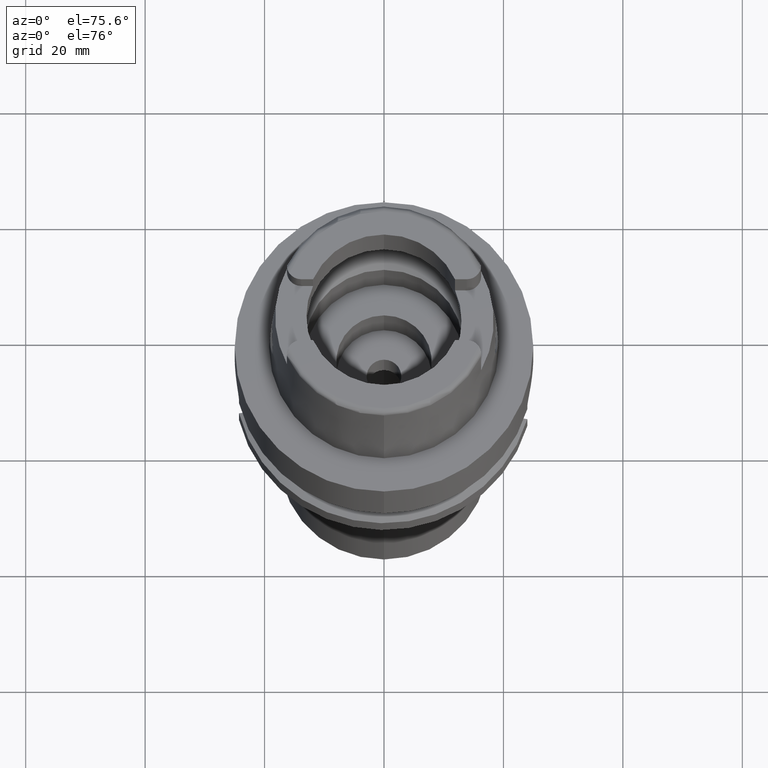
[diagram: clean part render]
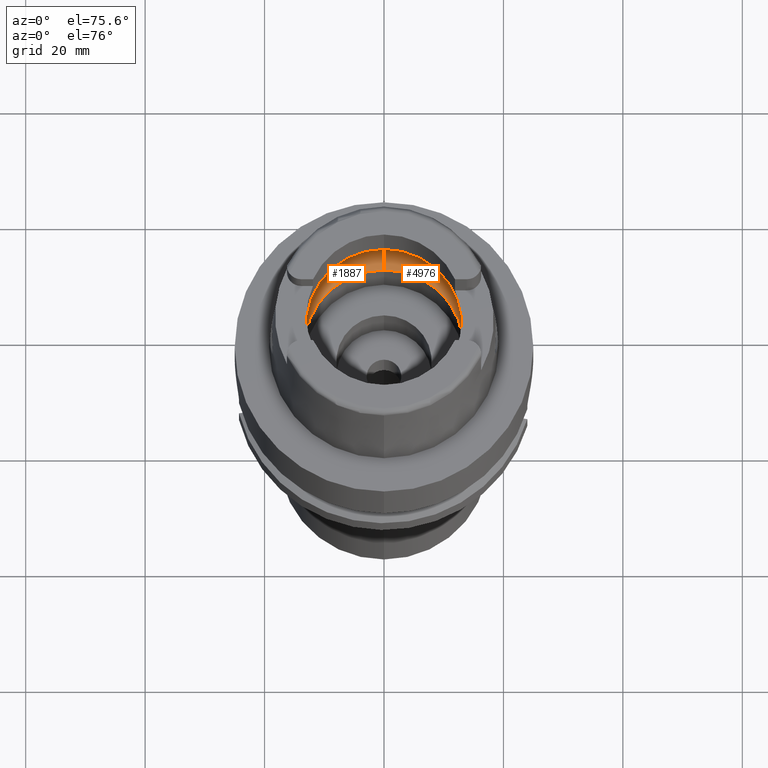
[diagram: same view with one multi-face feature highlighted, each face labeled with its STEP entity id]
A machine part, auxiliary view. The highlighted faces form ONE feature: a constant-radius fillet chain: 2 tangent blend faces with common blend radius 6 mm. The faces share edges in the B-rep.
Their STEP definitions:
[1] entity #1887 (Torus):
#8 = EDGE_CURVE ( 'NONE', #2583, #4451, #1337, .T. ) ;
#307 = CARTESIAN_POINT ( 'NONE',  ( 0.0000000000000000000, -13.29999999999999893, 0.04999999999997999794 ) ) ;
#491 = CARTESIAN_POINT ( 'NONE',  ( 0.0000000000000000000, 0.0000000000000000000, 0.04999999999997999794 ) ) ;
#748 = VERTEX_POINT ( 'NONE', #1587 ) ;
#751 = DIRECTION ( 'NONE',  ( 1.000000000000000000, 0.0000000000000000000, 0.0000000000000000000 ) ) ;
#788 = AXIS2_PLACEMENT_3D ( 'NONE', #3961, #751, #2443 ) ;
#846 = CARTESIAN_POINT ( 'NONE',  ( -15.90436354886000103, -1.746774199932999982, 5.060987926546999915 ) ) ;
#891 = VERTEX_POINT ( 'NONE', #3239 ) ;
#951 = DIRECTION ( 'NONE',  ( 0.0000000000000000000, 0.0000000000000000000, -1.000000000000000000 ) ) ;
#992 = EDGE_CURVE ( 'NONE', #748, #1645, #2294, .T. ) ;
#1009 = CARTESIAN_POINT ( 'NONE',  ( -15.92748130313666799, 1.536287252947671211, 4.910241166242705013 ) ) ;
#1070 = DIRECTION ( 'NONE',  ( -1.000000000000000000, 0.0000000000000000000, 0.0000000000000000000 ) ) ;
#1156 = CARTESIAN_POINT ( 'NONE',  ( -15.97371681168999835, 0.0000000000000000000, 4.500000000000000000 ) ) ;
#1162 = DIRECTION ( 'NONE',  ( 0.0000000000000000000, 0.0000000000000000000, -1.000000000000000000 ) ) ;
#1187 = DIRECTION ( 'NONE',  ( -0.9940227218040297297, 0.1091733874958031730, 0.0000000000000000000 ) ) ;
#1337 = B_SPLINE_CURVE_WITH_KNOTS ( 'NONE', 3,
 ( #1395, #3659, #1550, #2718, #3234, #1156 ),
 .UNSPECIFIED., .F., .F.,
 ( 4, 2, 4 ),
 ( 0.0000000000000000000, 0.5000000000000000000, 1.000000000000000000 ),
 .UNSPECIFIED. ) ;
#1395 = CARTESIAN_POINT ( 'NONE',  ( -15.90436354886000103, -1.746774199932999982, 5.060987926546999915 ) ) ;
#1468 = CARTESIAN_POINT ( 'NONE',  ( -15.96793737312083827, 0.6977532815320883763, 4.565769782569849333 ) ) ;
#1550 = CARTESIAN_POINT ( 'NONE',  ( -15.94481961884416954, -1.284363903373151983, 4.771085202048062079 ) ) ;
#1587 = CARTESIAN_POINT ( 'NONE',  ( 0.0000000000000000000, 13.29999999999999893, 0.04999999999997999794 ) ) ;
#1645 = VERTEX_POINT ( 'NONE', #307 ) ;
#1702 = EDGE_CURVE ( 'NONE', #891, #1824, #3350, .T. ) ;
#1794 = ORIENTED_EDGE ( 'NONE', *, *, #4633, .F. ) ;
#1824 = VERTEX_POINT ( 'NONE', #5067 ) ;
#1887 = ADVANCED_FACE ( 'NONE', ( #3353 ), #3895, .F. ) ;
#2294 = CIRCLE ( 'NONE', #3085, 13.29999999999999893 ) ;
#2329 = EDGE_LOOP ( 'NONE', ( #3243, #1794, #3092, #4161, #3415, #5032, #4811 ) ) ;
#2443 = DIRECTION ( 'NONE',  ( 0.0000000000000000000, 0.5500000000000007105, -0.8351646544245028281 ) ) ;
#2502 = CARTESIAN_POINT ( 'NONE',  ( 0.0000000000000000000, -16.00000000000000000, 5.060987926546999915 ) ) ;
#2583 = VERTEX_POINT ( 'NONE', #846 ) ;
#2621 = CARTESIAN_POINT ( 'NONE',  ( -15.97371681168999835, 0.3626031211342209404, 4.500000000000000000 ) ) ;
#2718 = CARTESIAN_POINT ( 'NONE',  ( -15.96793737312083472, -0.6977532815764048157, 4.565769782580386682 ) ) ;
#2723 = CIRCLE ( 'NONE', #3343, 16.00000000000000000 ) ;
#2846 = EDGE_CURVE ( 'NONE', #3249, #2583, #2723, .T. ) ;
#2909 = DIRECTION ( 'NONE',  ( 0.0000000000000000000, 1.000000000000000000, 0.0000000000000000000 ) ) ;
#3085 = AXIS2_PLACEMENT_3D ( 'NONE', #491, #3588, #4829 ) ;
#3092 = ORIENTED_EDGE ( 'NONE', *, *, #992, .F. ) ;
#3098 = CARTESIAN_POINT ( 'NONE',  ( -15.90436354886000103, 1.746774199932999982, 5.060987926546999915 ) ) ;
#3234 = CARTESIAN_POINT ( 'NONE',  ( -15.97371681168999835, -0.3626031211644242247, 4.499999999999999112 ) ) ;
#3239 = CARTESIAN_POINT ( 'NONE',  ( -15.90436354886000103, 1.746774199932999982, 5.060987926546999915 ) ) ;
#3243 = ORIENTED_EDGE ( 'NONE', *, *, #2846, .F. ) ;
#3249 = VERTEX_POINT ( 'NONE', #2502 ) ;
#3296 = CARTESIAN_POINT ( 'NONE',  ( 0.0000000000000000000, 0.0000000000000000000, 5.060987926546999915 ) ) ;
#3343 = AXIS2_PLACEMENT_3D ( 'NONE', #4773, #951, #3937 ) ;
#3350 = CIRCLE ( 'NONE', #4885, 16.00000000000000355 ) ;
#3353 = FACE_OUTER_BOUND ( 'NONE', #2329, .T. ) ;
#3415 = ORIENTED_EDGE ( 'NONE', *, *, #1702, .F. ) ;
#3544 = CARTESIAN_POINT ( 'NONE',  ( -15.97371681168999835, 0.0000000000000000000, 4.500000000000000000 ) ) ;
#3588 = DIRECTION ( 'NONE',  ( 0.0000000000000000000, 0.0000000000000000000, 1.000000000000000000 ) ) ;
#3659 = CARTESIAN_POINT ( 'NONE',  ( -15.92748130313666799, -1.536287252972227124, 4.910241166260291834 ) ) ;
#3895 = TOROIDAL_SURFACE ( 'NONE', #4791, 10.00000000000000000, 6.000000000000000000 ) ;
#3910 = AXIS2_PLACEMENT_3D ( 'NONE', #5380, #1070, #4044 ) ;
#3937 = DIRECTION ( 'NONE',  ( 0.0000000000000000000, -1.000000000000000000, 0.0000000000000000000 ) ) ;
#3961 = CARTESIAN_POINT ( 'NONE',  ( 0.0000000000000000000, 10.00000000000000000, 5.060987926546999915 ) ) ;
#4044 = DIRECTION ( 'NONE',  ( 0.0000000000000000000, -0.5500000000000007105, -0.8351646544245028281 ) ) ;
#4161 = ORIENTED_EDGE ( 'NONE', *, *, #4494, .T. ) ;
#4228 = CARTESIAN_POINT ( 'NONE',  ( 0.0000000000000000000, 0.0000000000000000000, 5.060987926546999915 ) ) ;
#4389 = CARTESIAN_POINT ( 'NONE',  ( -15.97371681168999835, 0.0000000000000000000, 4.500000000000000000 ) ) ;
#4421 = EDGE_CURVE ( 'NONE', #4451, #891, #5198, .T. ) ;
#4451 = VERTEX_POINT ( 'NONE', #4389 ) ;
#4494 = EDGE_CURVE ( 'NONE', #748, #1824, #4975, .T. ) ;
#4633 = EDGE_CURVE ( 'NONE', #1645, #3249, #4805, .T. ) ;
#4773 = CARTESIAN_POINT ( 'NONE',  ( 0.0000000000000000000, 0.0000000000000000000, 5.060987926546999915 ) ) ;
#4791 = AXIS2_PLACEMENT_3D ( 'NONE', #4228, #5152, #2909 ) ;
#4805 = CIRCLE ( 'NONE', #3910, 5.999999999999993783 ) ;
#4811 = ORIENTED_EDGE ( 'NONE', *, *, #8, .F. ) ;
#4829 = DIRECTION ( 'NONE',  ( 0.0000000000000000000, 1.000000000000000000, 0.0000000000000000000 ) ) ;
#4863 = CARTESIAN_POINT ( 'NONE',  ( -15.94481961884416599, 1.284363903331934509, 4.771085202028663375 ) ) ;
#4885 = AXIS2_PLACEMENT_3D ( 'NONE', #3296, #1162, #1187 ) ;
#4975 = CIRCLE ( 'NONE', #788, 5.999999999999993783 ) ;
#5032 = ORIENTED_EDGE ( 'NONE', *, *, #4421, .F. ) ;
#5067 = CARTESIAN_POINT ( 'NONE',  ( 0.0000000000000000000, 16.00000000000000000, 5.060987926546999915 ) ) ;
#5152 = DIRECTION ( 'NONE',  ( 0.0000000000000000000, 0.0000000000000000000, 1.000000000000000000 ) ) ;
#5198 = B_SPLINE_CURVE_WITH_KNOTS ( 'NONE', 3,
 ( #3544, #2621, #1468, #4863, #1009, #3098 ),
 .UNSPECIFIED., .F., .F.,
 ( 4, 2, 4 ),
 ( 0.0000000000000000000, 0.5000000000000000000, 1.000000000000000000 ),
 .UNSPECIFIED. ) ;
#5380 = CARTESIAN_POINT ( 'NONE',  ( 0.0000000000000000000, -10.00000000000000000, 5.060987926546999915 ) ) ;
[2] entity #4976 (Torus):
#91 = AXIS2_PLACEMENT_3D ( 'NONE', #4167, #4252, #4694 ) ;
#286 = CARTESIAN_POINT ( 'NONE',  ( 15.96793737312082406, 0.6977532815764533325, 4.565769782580398228 ) ) ;
#307 = CARTESIAN_POINT ( 'NONE',  ( 0.0000000000000000000, -13.29999999999999893, 0.04999999999997999794 ) ) ;
#420 = CARTESIAN_POINT ( 'NONE',  ( 0.0000000000000000000, 0.0000000000000000000, 5.060987926546999915 ) ) ;
#721 = EDGE_LOOP ( 'NONE', ( #2780, #5284, #2950, #2523, #1403, #4374, #3677 ) ) ;
#748 = VERTEX_POINT ( 'NONE', #1587 ) ;
#751 = DIRECTION ( 'NONE',  ( 1.000000000000000000, 0.0000000000000000000, 0.0000000000000000000 ) ) ;
#788 = AXIS2_PLACEMENT_3D ( 'NONE', #3961, #751, #2443 ) ;
#804 = CARTESIAN_POINT ( 'NONE',  ( 15.90436354886000103, 1.746774199932999982, 5.060987926546999915 ) ) ;
#844 = EDGE_CURVE ( 'NONE', #3345, #4526, #3404, .T. ) ;
#987 = EDGE_CURVE ( 'NONE', #1824, #3345, #3531, .T. ) ;
#1070 = DIRECTION ( 'NONE',  ( -1.000000000000000000, 0.0000000000000000000, 0.0000000000000000000 ) ) ;
#1164 = CARTESIAN_POINT ( 'NONE',  ( 15.97371681168999835, 0.3626031211644606955, 4.500000000000000888 ) ) ;
#1189 = CARTESIAN_POINT ( 'NONE',  ( 15.97371681168999835, 0.0000000000000000000, 4.500000000000000000 ) ) ;
#1192 = B_SPLINE_CURVE_WITH_KNOTS ( 'NONE', 3,
 ( #1786, #5154, #4737, #2607, #4317, #3475 ),
 .UNSPECIFIED., .F., .F.,
 ( 4, 2, 4 ),
 ( 0.0000000000000000000, 0.5000000000000000000, 1.000000000000000000 ),
 .UNSPECIFIED. ) ;
#1277 = CARTESIAN_POINT ( 'NONE',  ( 15.90436354886000103, -1.746774199932999982, 5.060987926546999915 ) ) ;
#1282 = VERTEX_POINT ( 'NONE', #1277 ) ;
#1349 = CIRCLE ( 'NONE', #2552, 13.29999999999999893 ) ;
#1389 = DIRECTION ( 'NONE',  ( 0.0000000000000000000, 0.0000000000000000000, 1.000000000000000000 ) ) ;
#1402 = CIRCLE ( 'NONE', #91, 16.00000000000000355 ) ;
#1403 = ORIENTED_EDGE ( 'NONE', *, *, #4633, .T. ) ;
#1478 = DIRECTION ( 'NONE',  ( 0.0000000000000000000, -1.000000000000000000, 0.0000000000000000000 ) ) ;
#1587 = CARTESIAN_POINT ( 'NONE',  ( 0.0000000000000000000, 13.29999999999999893, 0.04999999999997999794 ) ) ;
#1645 = VERTEX_POINT ( 'NONE', #307 ) ;
#1786 = CARTESIAN_POINT ( 'NONE',  ( 15.97371681168999835, 0.0000000000000000000, 4.500000000000000000 ) ) ;
#1824 = VERTEX_POINT ( 'NONE', #5067 ) ;
#2346 = EDGE_CURVE ( 'NONE', #1282, #3249, #1402, .T. ) ;
#2443 = DIRECTION ( 'NONE',  ( 0.0000000000000000000, 0.5500000000000007105, -0.8351646544245028281 ) ) ;
#2502 = CARTESIAN_POINT ( 'NONE',  ( 0.0000000000000000000, -16.00000000000000000, 5.060987926546999915 ) ) ;
#2523 = ORIENTED_EDGE ( 'NONE', *, *, #3294, .F. ) ;
#2552 = AXIS2_PLACEMENT_3D ( 'NONE', #3556, #1389, #1478 ) ;
#2607 = CARTESIAN_POINT ( 'NONE',  ( 15.94481961884416599, -1.284363903411000596, 4.771085202065872721 ) ) ;
#2780 = ORIENTED_EDGE ( 'NONE', *, *, #844, .F. ) ;
#2799 = CARTESIAN_POINT ( 'NONE',  ( 15.94481961884416954, 1.284363903373195281, 4.771085202048084284 ) ) ;
#2950 = ORIENTED_EDGE ( 'NONE', *, *, #4494, .F. ) ;
#3075 = CARTESIAN_POINT ( 'NONE',  ( 15.90436354886000103, 1.746774199932999982, 5.060987926546999915 ) ) ;
#3221 = DIRECTION ( 'NONE',  ( 0.0000000000000000000, 1.000000000000000000, 0.0000000000000000000 ) ) ;
#3249 = VERTEX_POINT ( 'NONE', #2502 ) ;
#3294 = EDGE_CURVE ( 'NONE', #1645, #748, #1349, .T. ) ;
#3345 = VERTEX_POINT ( 'NONE', #3075 ) ;
#3404 = B_SPLINE_CURVE_WITH_KNOTS ( 'NONE', 3,
 ( #804, #5010, #2799, #286, #1164, #1189 ),
 .UNSPECIFIED., .F., .F.,
 ( 4, 2, 4 ),
 ( 0.0000000000000000000, 0.5000000000000000000, 1.000000000000000000 ),
 .UNSPECIFIED. ) ;
#3475 = CARTESIAN_POINT ( 'NONE',  ( 15.90436354886000103, -1.746774199932999982, 5.060987926546999915 ) ) ;
#3531 = CIRCLE ( 'NONE', #5492, 16.00000000000000000 ) ;
#3556 = CARTESIAN_POINT ( 'NONE',  ( 0.0000000000000000000, 0.0000000000000000000, 0.04999999999997999794 ) ) ;
#3677 = ORIENTED_EDGE ( 'NONE', *, *, #5311, .F. ) ;
#3727 = TOROIDAL_SURFACE ( 'NONE', #4170, 10.00000000000000000, 6.000000000000000000 ) ;
#3780 = DIRECTION ( 'NONE',  ( 0.0000000000000000000, 0.0000000000000000000, -1.000000000000000000 ) ) ;
#3910 = AXIS2_PLACEMENT_3D ( 'NONE', #5380, #1070, #4044 ) ;
#3961 = CARTESIAN_POINT ( 'NONE',  ( 0.0000000000000000000, 10.00000000000000000, 5.060987926546999915 ) ) ;
#4015 = FACE_OUTER_BOUND ( 'NONE', #721, .T. ) ;
#4044 = DIRECTION ( 'NONE',  ( 0.0000000000000000000, -0.5500000000000007105, -0.8351646544245028281 ) ) ;
#4167 = CARTESIAN_POINT ( 'NONE',  ( 0.0000000000000000000, 0.0000000000000000000, 5.060987926546999915 ) ) ;
#4170 = AXIS2_PLACEMENT_3D ( 'NONE', #5298, #5353, #3221 ) ;
#4252 = DIRECTION ( 'NONE',  ( 0.0000000000000000000, 0.0000000000000000000, -1.000000000000000000 ) ) ;
#4317 = CARTESIAN_POINT ( 'NONE',  ( 15.92748130313666266, -1.536287252994779751, 4.910241166276443359 ) ) ;
#4374 = ORIENTED_EDGE ( 'NONE', *, *, #2346, .F. ) ;
#4494 = EDGE_CURVE ( 'NONE', #748, #1824, #4975, .T. ) ;
#4526 = VERTEX_POINT ( 'NONE', #4965 ) ;
#4633 = EDGE_CURVE ( 'NONE', #1645, #3249, #4805, .T. ) ;
#4694 = DIRECTION ( 'NONE',  ( 0.9940227218040297297, -0.1091733874958031730, 0.0000000000000000000 ) ) ;
#4737 = CARTESIAN_POINT ( 'NONE',  ( 15.96793737312083472, -0.6977532816171033714, 4.565769782590064274 ) ) ;
#4805 = CIRCLE ( 'NONE', #3910, 5.999999999999993783 ) ;
#4965 = CARTESIAN_POINT ( 'NONE',  ( 15.97371681168999835, 0.0000000000000000000, 4.500000000000000000 ) ) ;
#4975 = CIRCLE ( 'NONE', #788, 5.999999999999993783 ) ;
#4976 = ADVANCED_FACE ( 'NONE', ( #4015 ), #3727, .F. ) ;
#5010 = CARTESIAN_POINT ( 'NONE',  ( 15.92748130313666266, 1.536287252972255990, 4.910241166260312262 ) ) ;
#5067 = CARTESIAN_POINT ( 'NONE',  ( 0.0000000000000000000, 16.00000000000000000, 5.060987926546999915 ) ) ;
#5154 = CARTESIAN_POINT ( 'NONE',  ( 15.97371681169000190, -0.3626031211921638686, 4.500000000000000000 ) ) ;
#5248 = DIRECTION ( 'NONE',  ( 0.0000000000000000000, 1.000000000000000000, 0.0000000000000000000 ) ) ;
#5284 = ORIENTED_EDGE ( 'NONE', *, *, #987, .F. ) ;
#5298 = CARTESIAN_POINT ( 'NONE',  ( 0.0000000000000000000, 0.0000000000000000000, 5.060987926546999915 ) ) ;
#5311 = EDGE_CURVE ( 'NONE', #4526, #1282, #1192, .T. ) ;
#5353 = DIRECTION ( 'NONE',  ( 0.0000000000000000000, 0.0000000000000000000, 1.000000000000000000 ) ) ;
#5380 = CARTESIAN_POINT ( 'NONE',  ( 0.0000000000000000000, -10.00000000000000000, 5.060987926546999915 ) ) ;
#5492 = AXIS2_PLACEMENT_3D ( 'NONE', #420, #3780, #5248 ) ;